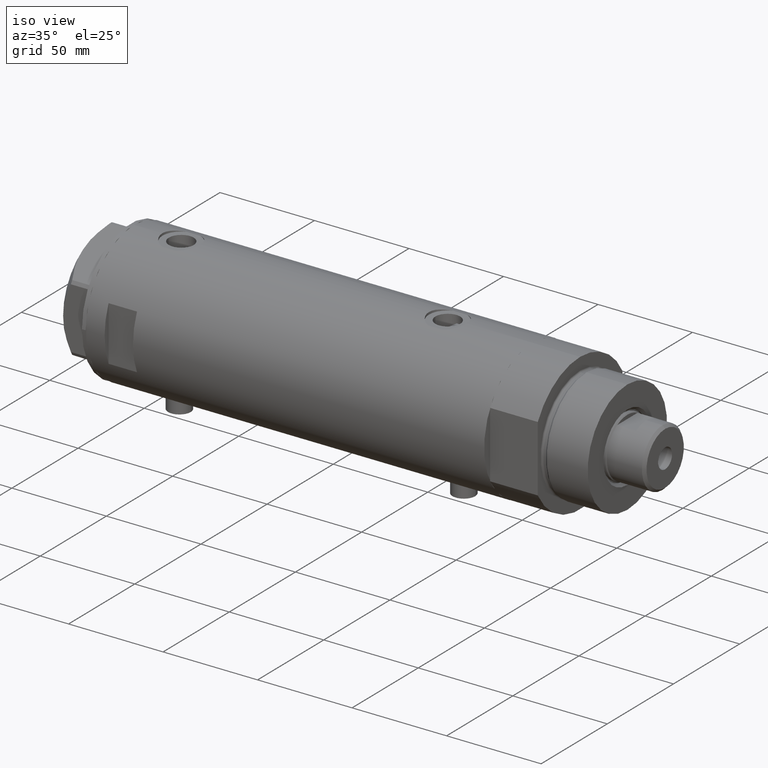
[diagram: clean part render]
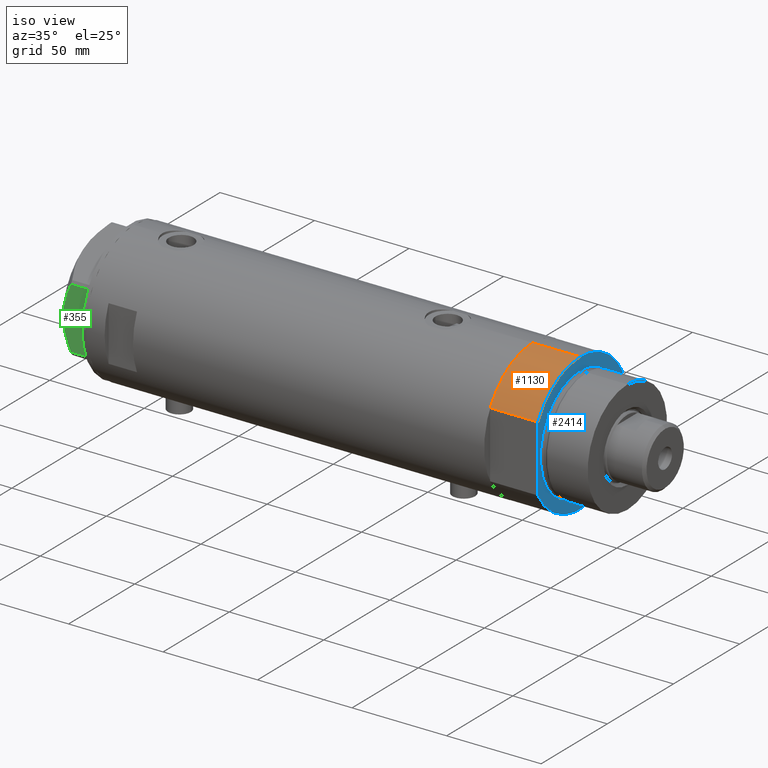
[diagram: same view with three faces highlighted in distinct colors, each labeled with its STEP entity id]
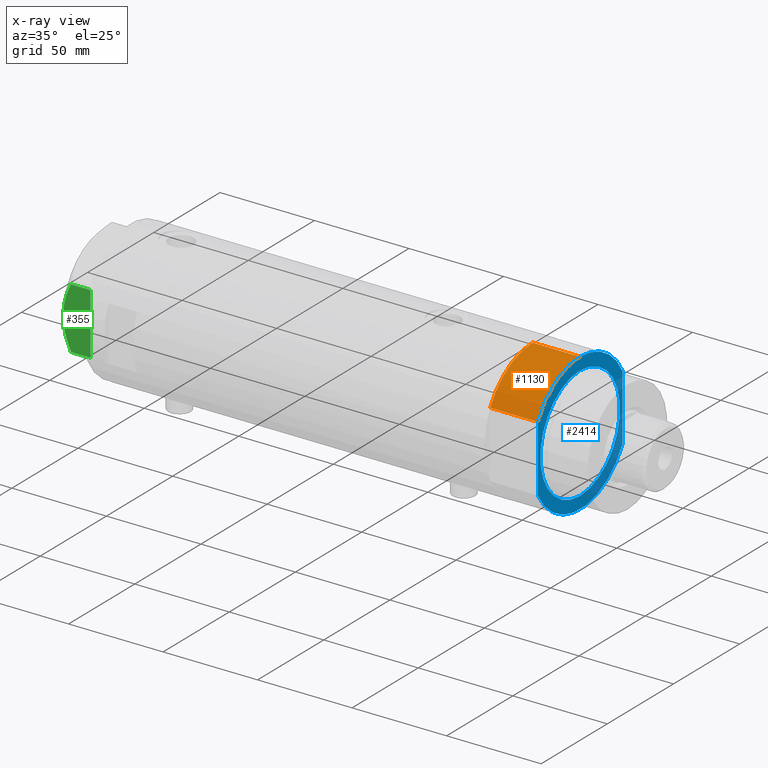
[diagram: x-ray of the same camera — body ghosted, the three highlighted faces saturated]
A machine part, iso view with three faces highlighted in distinct colors.
The next image is the same camera in x-ray (body ghosted, the three faces saturated) — at least one of them is partly hidden behind the body in this view.
Their STEP definitions:

[orange] entity #1130 — the highlighted cylindrical surface (partial cylindrical patch) has radius 36.5 mm, axis along (-1, -0, 0).
#70 = CARTESIAN_POINT ( 'NONE',  ( 0.000000000000000000, 0.000000000000000000, 0.000000000000000000 ) ) ;
#103 = DIRECTION ( 'NONE',  ( 0.000000000000000000, 0.000000000000000000, 1.000000000000000000 ) ) ;
#252 = DIRECTION ( 'NONE',  ( -1.000000000000000000, 0.000000000000000000, 0.000000000000000000 ) ) ;
#307 = CARTESIAN_POINT ( 'NONE',  ( -36.50000000000000000, 0.000000000000000000, 25.19999999999999929 ) ) ;
#513 = VERTEX_POINT ( 'NONE', #2490 ) ;
#560 = VECTOR ( 'NONE', #4061, 1000.000000000000000 ) ;
#623 = DIRECTION ( 'NONE',  ( -0.000000000000000000, -0.000000000000000000, -1.000000000000000000 ) ) ;
#640 = ORIENTED_EDGE ( 'NONE', *, *, #1103, .T. ) ;
#675 = ORIENTED_EDGE ( 'NONE', *, *, #4162, .T. ) ;
#934 = AXIS2_PLACEMENT_3D ( 'NONE', #2199, #103, #4219 ) ;
#966 = CARTESIAN_POINT ( 'NONE',  ( 0.000000000000000000, 0.000000000000000000, 25.19999999999999929 ) ) ;
#1078 = AXIS2_PLACEMENT_3D ( 'NONE', #966, #623, #252 ) ;
#1103 = EDGE_CURVE ( 'NONE', #1221, #513, #3736, .T. ) ;
#1130 = ADVANCED_FACE ( 'NONE', ( #2402 ), #3765, .T. ) ;
#1132 = CARTESIAN_POINT ( 'NONE',  ( -17.55704986607943496, -32.00000000000000000, 25.19999999999999929 ) ) ;
#1161 = ORIENTED_EDGE ( 'NONE', *, *, #3183, .F. ) ;
#1185 = EDGE_CURVE ( 'NONE', #2482, #1221, #3433, .T. ) ;
#1221 = VERTEX_POINT ( 'NONE', #2682 ) ;
#1288 = CARTESIAN_POINT ( 'NONE',  ( -17.55704986607943141, -32.00000000000000000, 0.000000000000000000 ) ) ;
#2199 = CARTESIAN_POINT ( 'NONE',  ( 0.000000000000000000, 0.000000000000000000, 25.19999999999999929 ) ) ;
#2402 = FACE_OUTER_BOUND ( 'NONE', #2669, .T. ) ;
#2482 = VERTEX_POINT ( 'NONE', #2845 ) ;
#2490 = CARTESIAN_POINT ( 'NONE',  ( -17.55704986607943496, -32.00000000000000000, 0.000000000000000000 ) ) ;
#2669 = EDGE_LOOP ( 'NONE', ( #1161, #3548, #640, #675 ) ) ;
#2682 = CARTESIAN_POINT ( 'NONE',  ( -36.50000000000000000, 0.000000000000000000, 0.000000000000000000 ) ) ;
#2795 = AXIS2_PLACEMENT_3D ( 'NONE', #70, #3184, #3785 ) ;
#2845 = CARTESIAN_POINT ( 'NONE',  ( -36.50000000000000000, 0.000000000000000000, 25.19999999999999929 ) ) ;
#2873 = VECTOR ( 'NONE', #4391, 1000.000000000000000 ) ;
#3183 = EDGE_CURVE ( 'NONE', #2482, #3998, #3947, .T. ) ;
#3184 = DIRECTION ( 'NONE',  ( 0.000000000000000000, 0.000000000000000000, 1.000000000000000000 ) ) ;
#3350 = LINE ( 'NONE', #1288, #2873 ) ;
#3433 = LINE ( 'NONE', #307, #560 ) ;
#3548 = ORIENTED_EDGE ( 'NONE', *, *, #1185, .T. ) ;
#3736 = CIRCLE ( 'NONE', #2795, 36.50000000000000000 ) ;
#3765 = CYLINDRICAL_SURFACE ( 'NONE', #1078, 36.50000000000000000 ) ;
#3785 = DIRECTION ( 'NONE',  ( 1.000000000000000000, 0.000000000000000000, 0.000000000000000000 ) ) ;
#3947 = CIRCLE ( 'NONE', #934, 36.50000000000000000 ) ;
#3998 = VERTEX_POINT ( 'NONE', #1132 ) ;
#4061 = DIRECTION ( 'NONE',  ( -0.000000000000000000, -0.000000000000000000, -1.000000000000000000 ) ) ;
#4162 = EDGE_CURVE ( 'NONE', #513, #3998, #3350, .T. ) ;
#4219 = DIRECTION ( 'NONE',  ( 1.000000000000000000, 0.000000000000000000, 0.000000000000000000 ) ) ;
#4391 = DIRECTION ( 'NONE',  ( -0.000000000000000000, -0.000000000000000000, 1.000000000000000000 ) ) ;

[blue] entity #2414 — the highlighted planar face has unit normal (1, 0, -0).
#103 = DIRECTION ( 'NONE',  ( 0.000000000000000000, 0.000000000000000000, 1.000000000000000000 ) ) ;
#120 = VECTOR ( 'NONE', #144, 1000.000000000000000 ) ;
#144 = DIRECTION ( 'NONE',  ( -1.000000000000000000, -0.000000000000000000, -0.000000000000000000 ) ) ;
#201 = DIRECTION ( 'NONE',  ( 1.000000000000000000, 0.000000000000000000, 0.000000000000000000 ) ) ;
#263 = EDGE_CURVE ( 'NONE', #3035, #4363, #1479, .T. ) ;
#457 = VERTEX_POINT ( 'NONE', #2755 ) ;
#517 = DIRECTION ( 'NONE',  ( -0.000000000000000000, -0.000000000000000000, -1.000000000000000000 ) ) ;
#585 = ORIENTED_EDGE ( 'NONE', *, *, #2131, .T. ) ;
#620 = CARTESIAN_POINT ( 'NONE',  ( 17.55704986607943496, 32.00000000000000000, 25.19999999999999929 ) ) ;
#624 = DIRECTION ( 'NONE',  ( 0.000000000000000000, 0.000000000000000000, 1.000000000000000000 ) ) ;
#647 = CIRCLE ( 'NONE', #3151, 30.00000000000000355 ) ;
#826 = DIRECTION ( 'NONE',  ( 0.000000000000000000, 0.000000000000000000, 1.000000000000000000 ) ) ;
#856 = CIRCLE ( 'NONE', #4169, 36.50000000000000000 ) ;
#868 = CARTESIAN_POINT ( 'NONE',  ( 0.000000000000000000, 0.000000000000000000, 25.19999999999999929 ) ) ;
#934 = AXIS2_PLACEMENT_3D ( 'NONE', #2199, #103, #4219 ) ;
#936 = AXIS2_PLACEMENT_3D ( 'NONE', #868, #517, #3643 ) ;
#1009 = AXIS2_PLACEMENT_3D ( 'NONE', #3303, #826, #201 ) ;
#1085 = CIRCLE ( 'NONE', #936, 30.00000000000000355 ) ;
#1132 = CARTESIAN_POINT ( 'NONE',  ( -17.55704986607943496, -32.00000000000000000, 25.19999999999999929 ) ) ;
#1237 = ORIENTED_EDGE ( 'NONE', *, *, #3387, .T. ) ;
#1313 = CARTESIAN_POINT ( 'NONE',  ( 0.000000000000000000, 0.000000000000000000, 25.19999999999999929 ) ) ;
#1355 = EDGE_CURVE ( 'NONE', #3047, #4323, #647, .T. ) ;
#1420 = DIRECTION ( 'NONE',  ( 1.000000000000000000, 0.000000000000000000, 0.000000000000000000 ) ) ;
#1479 = LINE ( 'NONE', #2071, #3500 ) ;
#1484 = EDGE_CURVE ( 'NONE', #4323, #3047, #1085, .T. ) ;
#1514 = EDGE_CURVE ( 'NONE', #457, #3998, #3988, .T. ) ;
#1630 = FACE_OUTER_BOUND ( 'NONE', #2780, .T. ) ;
#1686 = ORIENTED_EDGE ( 'NONE', *, *, #1355, .T. ) ;
#1709 = ORIENTED_EDGE ( 'NONE', *, *, #1484, .T. ) ;
#1798 = DIRECTION ( 'NONE',  ( 0.000000000000000000, 0.000000000000000000, 1.000000000000000000 ) ) ;
#1841 = DIRECTION ( 'NONE',  ( 1.000000000000000000, 0.000000000000000000, 0.000000000000000000 ) ) ;
#1856 = CIRCLE ( 'NONE', #1009, 36.50000000000000000 ) ;
#2027 = FACE_BOUND ( 'NONE', #4057, .T. ) ;
#2071 = CARTESIAN_POINT ( 'NONE',  ( -17.55704986607943141, 32.00000000000000000, 25.19999999999999929 ) ) ;
#2131 = EDGE_CURVE ( 'NONE', #457, #4363, #1856, .T. ) ;
#2150 = DIRECTION ( 'NONE',  ( 1.000000000000000000, 0.000000000000000000, 0.000000000000000000 ) ) ;
#2199 = CARTESIAN_POINT ( 'NONE',  ( 0.000000000000000000, 0.000000000000000000, 25.19999999999999929 ) ) ;
#2225 = ORIENTED_EDGE ( 'NONE', *, *, #1514, .F. ) ;
#2414 = ADVANCED_FACE ( 'NONE', ( #2027, #1630 ), #4394, .T. ) ;
#2482 = VERTEX_POINT ( 'NONE', #2845 ) ;
#2515 = AXIS2_PLACEMENT_3D ( 'NONE', #1313, #624, #4049 ) ;
#2554 = CARTESIAN_POINT ( 'NONE',  ( 30.00000000000000355, 0.000000000000000000, 25.19999999999999929 ) ) ;
#2755 = CARTESIAN_POINT ( 'NONE',  ( 17.55704986607943496, -32.00000000000000000, 25.19999999999999929 ) ) ;
#2780 = EDGE_LOOP ( 'NONE', ( #2225, #585, #3725, #1237, #3002 ) ) ;
#2845 = CARTESIAN_POINT ( 'NONE',  ( -36.50000000000000000, 0.000000000000000000, 25.19999999999999929 ) ) ;
#3002 = ORIENTED_EDGE ( 'NONE', *, *, #3183, .T. ) ;
#3035 = VERTEX_POINT ( 'NONE', #3976 ) ;
#3047 = VERTEX_POINT ( 'NONE', #3344 ) ;
#3151 = AXIS2_PLACEMENT_3D ( 'NONE', #3198, #3274, #1841 ) ;
#3183 = EDGE_CURVE ( 'NONE', #2482, #3998, #3947, .T. ) ;
#3198 = CARTESIAN_POINT ( 'NONE',  ( 0.000000000000000000, 0.000000000000000000, 25.19999999999999929 ) ) ;
#3266 = CARTESIAN_POINT ( 'NONE',  ( -17.55704986607943141, -32.00000000000000000, 25.19999999999999929 ) ) ;
#3274 = DIRECTION ( 'NONE',  ( -0.000000000000000000, -0.000000000000000000, -1.000000000000000000 ) ) ;
#3303 = CARTESIAN_POINT ( 'NONE',  ( 0.000000000000000000, 0.000000000000000000, 25.19999999999999929 ) ) ;
#3344 = CARTESIAN_POINT ( 'NONE',  ( -30.00000000000000355, 3.673940397442059178E-15, 25.19999999999999929 ) ) ;
#3387 = EDGE_CURVE ( 'NONE', #3035, #2482, #856, .T. ) ;
#3500 = VECTOR ( 'NONE', #1420, 1000.000000000000000 ) ;
#3643 = DIRECTION ( 'NONE',  ( 1.000000000000000000, 0.000000000000000000, 0.000000000000000000 ) ) ;
#3725 = ORIENTED_EDGE ( 'NONE', *, *, #263, .F. ) ;
#3875 = CARTESIAN_POINT ( 'NONE',  ( 0.000000000000000000, 0.000000000000000000, 25.19999999999999929 ) ) ;
#3947 = CIRCLE ( 'NONE', #934, 36.50000000000000000 ) ;
#3976 = CARTESIAN_POINT ( 'NONE',  ( -17.55704986607943496, 32.00000000000000000, 25.19999999999999929 ) ) ;
#3988 = LINE ( 'NONE', #3266, #120 ) ;
#3998 = VERTEX_POINT ( 'NONE', #1132 ) ;
#4049 = DIRECTION ( 'NONE',  ( 1.000000000000000000, 0.000000000000000000, -0.000000000000000000 ) ) ;
#4057 = EDGE_LOOP ( 'NONE', ( #1709, #1686 ) ) ;
#4169 = AXIS2_PLACEMENT_3D ( 'NONE', #3875, #1798, #2150 ) ;
#4219 = DIRECTION ( 'NONE',  ( 1.000000000000000000, 0.000000000000000000, 0.000000000000000000 ) ) ;
#4323 = VERTEX_POINT ( 'NONE', #2554 ) ;
#4363 = VERTEX_POINT ( 'NONE', #620 ) ;
#4394 = PLANE ( 'NONE',  #2515 ) ;

[green] entity #355 — the highlighted planar face has unit normal (-0, 1, 0).
#1 = CARTESIAN_POINT ( 'NONE',  ( -30.00000000000000711, 8.981118657900116986, 13.19130745470829247 ) ) ;
#4 = PLANE ( 'NONE',  #2051 ) ;
#41 = CARTESIAN_POINT ( 'NONE',  ( -30.00000000000000000, 11.66725319103952607, 12.31690447555093293 ) ) ;
#161 = CARTESIAN_POINT ( 'NONE',  ( -29.99999999999999289, -5.607365453019637513, 14.01139032121647965 ) ) ;
#162 = CARTESIAN_POINT ( 'NONE',  ( -30.00000000000000000, -16.20050807568876294, 14.50000000000000000 ) ) ;
#239 = LINE ( 'NONE', #162, #4228 ) ;
#308 = CARTESIAN_POINT ( 'NONE',  ( -30.00000000000000000, -16.20050807568876294, 0.000000000000000000 ) ) ;
#322 = ORIENTED_EDGE ( 'NONE', *, *, #1823, .T. ) ;
#349 = ORIENTED_EDGE ( 'NONE', *, *, #2725, .F. ) ;
#355 = ADVANCED_FACE ( 'NONE', ( #3100 ), #4, .F. ) ;
#369 = CARTESIAN_POINT ( 'NONE',  ( -30.00000000000000711, 2.830925467268496476, 14.50000000000000533 ) ) ;
#384 = ORIENTED_EDGE ( 'NONE', *, *, #720, .T. ) ;
#501 = CARTESIAN_POINT ( 'NONE',  ( -29.99999999999999289, -14.92797448277034533, 10.99622797424084553 ) ) ;
#515 = CARTESIAN_POINT ( 'NONE',  ( -30.00000000000000000, -16.20050807568876294, 10.40518423703603901 ) ) ;
#589 = CARTESIAN_POINT ( 'NONE',  ( -30.00000000000000000, -16.20050807568876294, 10.40518423703603901 ) ) ;
#720 = EDGE_CURVE ( 'NONE', #2464, #1321, #239, .T. ) ;
#901 = CARTESIAN_POINT ( 'NONE',  ( -30.00000000000000000, -3.526431665117130798, 14.30125973663612626 ) ) ;
#1057 = DIRECTION ( 'NONE',  ( -0.000000000000000000, 0.000000000000000000, -1.000000000000000000 ) ) ;
#1118 = ORIENTED_EDGE ( 'NONE', *, *, #1253, .F. ) ;
#1120 = CARTESIAN_POINT ( 'NONE',  ( -30.00000000000000355, 13.64854889245356695, 11.56384586935411996 ) ) ;
#1253 = EDGE_CURVE ( 'NONE', #3346, #3456, #1343, .T. ) ;
#1321 = VERTEX_POINT ( 'NONE', #515 ) ;
#1324 = ORIENTED_EDGE ( 'NONE', *, *, #3602, .T. ) ;
#1343 = B_SPLINE_CURVE_WITH_KNOTS ( 'NONE', 3,
 ( #1694, #3066, #1120, #41, #2476, #3098, #1, #4199, #369, #1402 ),
 .UNSPECIFIED., .F., .F.,
 ( 4, 2, 2, 2, 4 ),
 ( 0.04501738275285960267, 0.04922240792374713014, 0.05132492050919089388, 0.05342743309463465068, 0.06183748343640969869 ),
 .UNSPECIFIED. ) ;
#1402 = CARTESIAN_POINT ( 'NONE',  ( -30.00000000000000000, 0.000000000000000000, 14.50000000000000000 ) ) ;
#1404 = CARTESIAN_POINT ( 'NONE',  ( -30.00000000000000000, 17.32050807568877460, 14.50000000000000000 ) ) ;
#1550 = CARTESIAN_POINT ( 'NONE',  ( -29.99999999999999645, -12.97715359595204809, 11.81918444541430624 ) ) ;
#1599 = CARTESIAN_POINT ( 'NONE',  ( -30.00000000000000000, -11.00230860792644982, 12.56933207488871673 ) ) ;
#1694 = CARTESIAN_POINT ( 'NONE',  ( -30.00000000000000000, 16.20050807568875584, 10.40518423703603546 ) ) ;
#1815 = CARTESIAN_POINT ( 'NONE',  ( -30.00000000000000000, 16.20050807568875584, 10.40518423703603546 ) ) ;
#1823 = EDGE_CURVE ( 'NONE', #3102, #2464, #3328, .T. ) ;
#1862 = DIRECTION ( 'NONE',  ( 0.000000000000000000, 0.000000000000000000, -1.000000000000000000 ) ) ;
#1880 = CARTESIAN_POINT ( 'NONE',  ( -29.99999999999999289, -15.56759648729806322, 10.70591879357992227 ) ) ;
#1939 = CARTESIAN_POINT ( 'NONE',  ( -30.00000000000000000, 16.20050807568875584, 0.000000000000000000 ) ) ;
#1971 = CARTESIAN_POINT ( 'NONE',  ( -30.00000000000000000, 0.000000000000000000, 14.50000000000000000 ) ) ;
#1996 = VECTOR ( 'NONE', #1862, 1000.000000000000000 ) ;
#2017 = DIRECTION ( 'NONE',  ( 0.000000000000000000, -1.000000000000000000, 0.000000000000000000 ) ) ;
#2051 = AXIS2_PLACEMENT_3D ( 'NONE', #1404, #2768, #1057 ) ;
#2191 = LINE ( 'NONE', #3265, #1996 ) ;
#2214 = CARTESIAN_POINT ( 'NONE',  ( -29.99999999999999645, -9.671229349009038856, 13.00645148086949554 ) ) ;
#2363 = VECTOR ( 'NONE', #2017, 1000.000000000000000 ) ;
#2464 = VERTEX_POINT ( 'NONE', #308 ) ;
#2476 = CARTESIAN_POINT ( 'NONE',  ( -30.00000000000000355, 10.99748736931232607, 12.55407623651775495 ) ) ;
#2595 = CARTESIAN_POINT ( 'NONE',  ( -29.99999999999999645, -2.827567415490778835, 14.37523681947611109 ) ) ;
#2725 = EDGE_CURVE ( 'NONE', #3456, #1321, #4348, .T. ) ;
#2768 = DIRECTION ( 'NONE',  ( 1.000000000000000000, 0.000000000000000000, -0.000000000000000000 ) ) ;
#3066 = CARTESIAN_POINT ( 'NONE',  ( -30.00000000000001421, 14.93680064777130312, 11.00564802993687508 ) ) ;
#3098 = CARTESIAN_POINT ( 'NONE',  ( -30.00000000000000000, 9.655259153795977767, 12.99093232113973606 ) ) ;
#3100 = FACE_OUTER_BOUND ( 'NONE', #4387, .T. ) ;
#3102 = VERTEX_POINT ( 'NONE', #1939 ) ;
#3265 = CARTESIAN_POINT ( 'NONE',  ( -30.00000000000000000, 16.20050807568875584, 14.50000000000000000 ) ) ;
#3328 = LINE ( 'NONE', #3774, #2363 ) ;
#3346 = VERTEX_POINT ( 'NONE', #1815 ) ;
#3359 = CARTESIAN_POINT ( 'NONE',  ( -30.00000000000000000, -0.7060353153488233557, 14.49999999999999822 ) ) ;
#3456 = VERTEX_POINT ( 'NONE', #4309 ) ;
#3602 = EDGE_CURVE ( 'NONE', #3346, #3102, #2191, .T. ) ;
#3604 = CARTESIAN_POINT ( 'NONE',  ( -29.99999999999999289, -13.63320717147166405, 11.55272916346384804 ) ) ;
#3683 = CARTESIAN_POINT ( 'NONE',  ( -30.00000000000000000, -6.973771051792319042, 13.72753822183687511 ) ) ;
#3706 = DIRECTION ( 'NONE',  ( 0.000000000000000000, 0.000000000000000000, 1.000000000000000000 ) ) ;
#3774 = CARTESIAN_POINT ( 'NONE',  ( -30.00000000000000000, 17.32050807568877460, 0.000000000000000000 ) ) ;
#3939 = CARTESIAN_POINT ( 'NONE',  ( -30.00000000000000355, -1.418661615092686290, 14.47469700449902952 ) ) ;
#4199 = CARTESIAN_POINT ( 'NONE',  ( -30.00000000000000000, 5.593935073701701732, 14.09487059093540573 ) ) ;
#4228 = VECTOR ( 'NONE', #3706, 1000.000000000000000 ) ;
#4309 = CARTESIAN_POINT ( 'NONE',  ( -30.00000000000000000, 0.000000000000000000, 14.50000000000000000 ) ) ;
#4348 = B_SPLINE_CURVE_WITH_KNOTS ( 'NONE', 3,
 ( #1971, #3359, #3939, #2595, #901, #161, #3683, #2214, #1599, #1550, #3604, #501, #1880, #589 ),
 .UNSPECIFIED., .F., .F.,
 ( 4, 2, 2, 2, 2, 2, 4 ),
 ( 0.06183748343640969869, 0.06393495742991751885, 0.06603243142342535288, 0.07022737941044099319, 0.07442232739745664738, 0.07651980139096448141, 0.07861727538447230157 ),
 .UNSPECIFIED. ) ;
#4387 = EDGE_LOOP ( 'NONE', ( #1118, #1324, #322, #384, #349 ) ) ;